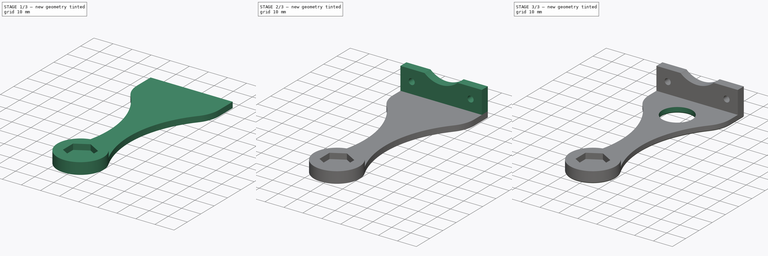
[diagram: build sequence overview — one tinted view per stage of 3, left to right]
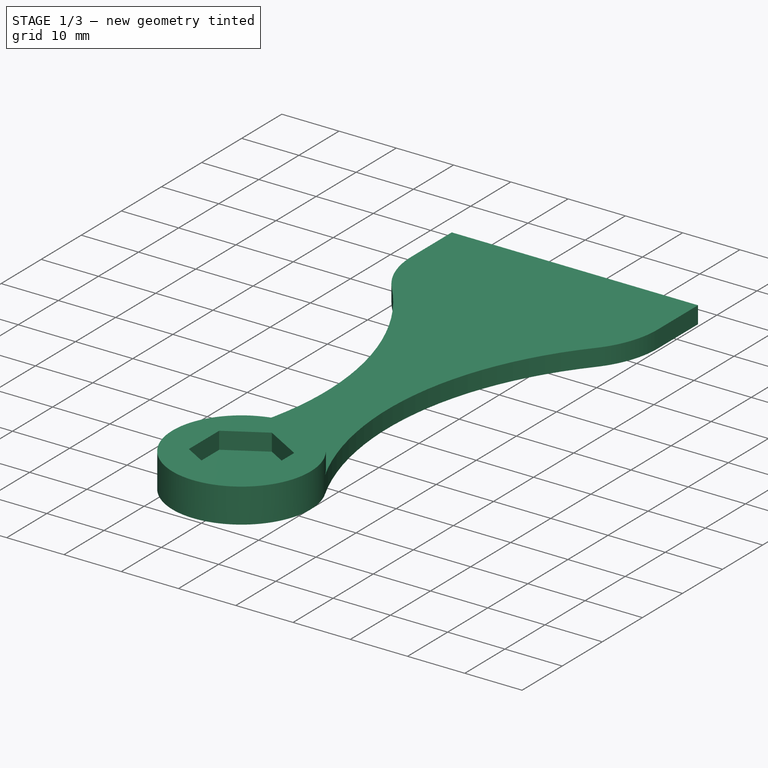
[diagram: stage 1 of 3 — iso view after this stage's code; geometry added in this stage tinted green]
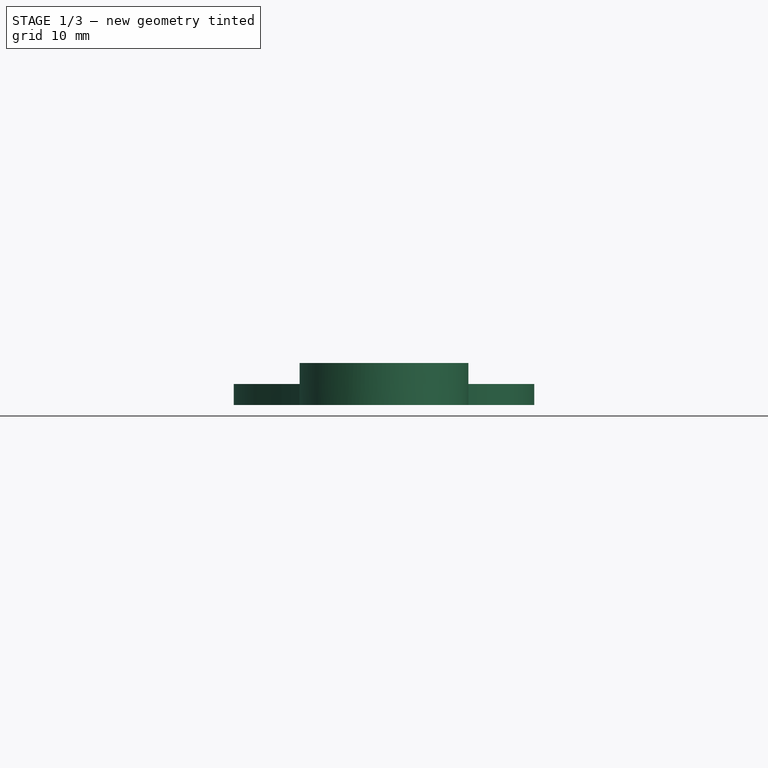
[diagram: stage 1 of 3 — front view after this stage's code; geometry added in this stage tinted green]
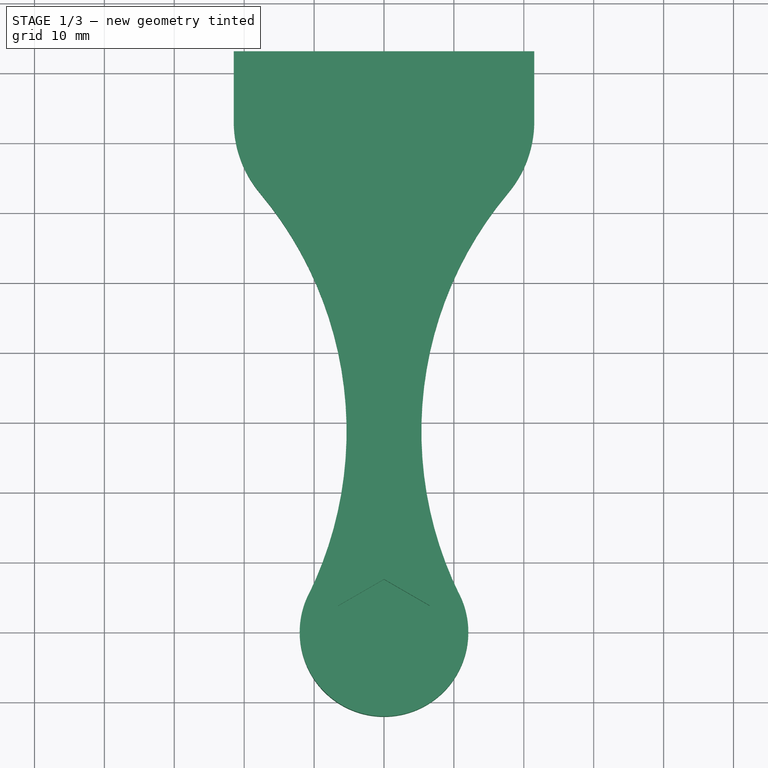
[diagram: stage 1 of 3 — top view after this stage's code; geometry added in this stage tinted green]
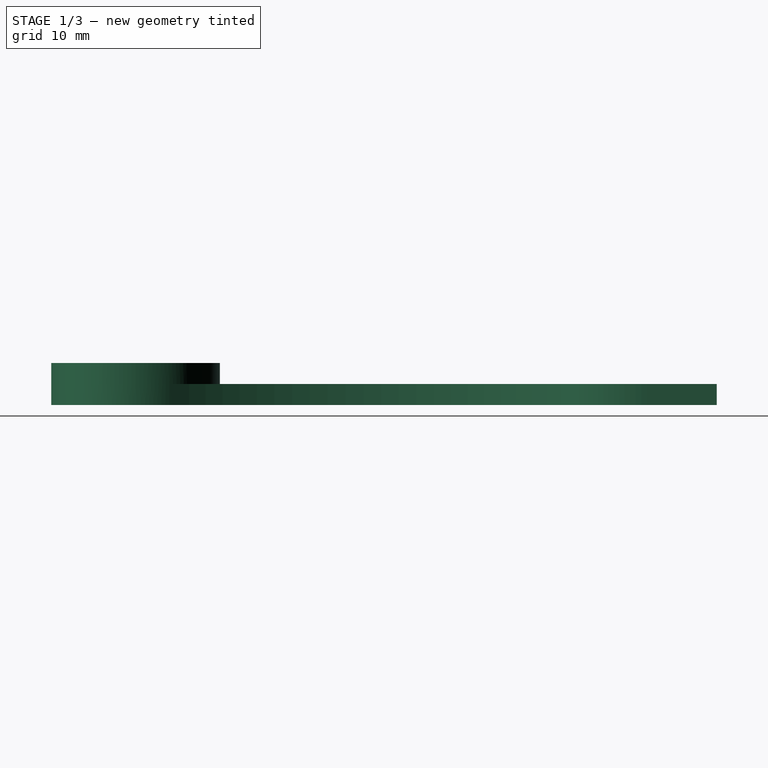
[diagram: stage 1 of 3 — right view after this stage's code; geometry added in this stage tinted green]
FCSTD DOCUMENT  (FreeCAD 0.16RUnknown)
Label: motot-mount.001
License: All rights reserved
LicenseURL: http://en.wikipedia.org/wiki/All_rights_reserved
objects: Sketcher::SketchObject×4, Part::Extrusion×2, PartDesign::Pad×1, Part::MultiFuse×1, PartDesign::Pocket×1, Part::Fillet×1
note: 12 computed .brp shape members not serialized (recipe doc carries the construction recipe); baked Part::Feature solids carry a one-line shape summary decoded from their .brp

FEATURE [Sketcher::SketchObject] Sketch
  sketch-geometry (22):
    g0: LineSegment [constr] StartX=0 StartY=7.56329 StartZ=0 EndX=-6.55 EndY=3.78164 EndZ=0
    g1: LineSegment [constr] StartX=-6.55 StartY=3.78164 StartZ=0 EndX=-6.55 EndY=-3.78164 EndZ=0
    g2: LineSegment [constr] StartX=-6.55 StartY=-3.78164 StartZ=0 EndX=0 EndY=-7.56329 EndZ=0
    g3: LineSegment [constr] StartX=0 StartY=-7.56329 StartZ=0 EndX=6.55 EndY=-3.78164 EndZ=0
    g4: LineSegment [constr] StartX=6.55 StartY=-3.78164 StartZ=0 EndX=6.55 EndY=3.78164 EndZ=0
    g5: LineSegment [constr] StartX=6.55 StartY=3.78164 StartZ=0 EndX=0 EndY=7.56329 EndZ=0
    g6: Circle [constr] CenterX=0 CenterY=0 CenterZ=0 NormalX=0 NormalY=0 NormalZ=1 Radius=7.56329
    g7: LineSegment StartX=-21.5 StartY=83.1367 StartZ=0 EndX=21.5 EndY=83.1367 EndZ=0
    g8: LineSegment [constr] StartX=0 StartY=7.56329 StartZ=0 EndX=0 EndY=12.0633 EndZ=0
    g9: LineSegment [constr] StartX=0 StartY=83.1367 StartZ=0 EndX=0 EndY=78.6367 EndZ=0
    g10: ArcOfCircle [constr] CenterX=0 CenterY=0 CenterZ=0 NormalX=0 NormalY=0 NormalZ=1 Radius=12.0633 StartAngle=0.458185 EndAngle=2.68341
    g11: ArcOfCircle CenterX=0 CenterY=0 CenterZ=0 NormalX=0 NormalY=0 NormalZ=1 Radius=12.0633 StartAngle=2.68341 EndAngle=6.74137
    g12: LineSegment StartX=-21.5 StartY=83.1367 StartZ=0 EndX=-21.5 EndY=73.1367 EndZ=0
    g13: LineSegment StartX=21.5 StartY=83.1367 StartZ=0 EndX=21.5 EndY=73.1367 EndZ=0
    g14: ArcOfCircle CenterX=-5.5 CenterY=73.1367 CenterZ=0 NormalX=0 NormalY=0 NormalZ=1 Radius=16 StartAngle=3.14159 EndAngle=3.83983
    g15: ArcOfCircle CenterX=5.5 CenterY=73.1452 CenterZ=0 NormalX=0 NormalY=0 NormalZ=1 Radius=16 StartAngle=5.58425 EndAngle=6.28265
    g16: ArcOfCircle CenterX=-58.3525 CenterY=28.7789 CenterZ=0 NormalX=0 NormalY=0 NormalZ=1 Radius=53 StartAngle=5.825 EndAngle=6.98142
    g17: ArcOfCircle CenterX=58.3498 CenterY=28.7842 CenterZ=0 NormalX=0 NormalY=0 NormalZ=1 Radius=53 StartAngle=2.44349 EndAngle=3.59989
    g18: LineSegment [constr] StartX=-21.5 StartY=83.1367 StartZ=0 EndX=0 EndY=78.6367 EndZ=0
    g19: LineSegment [constr] StartX=0 StartY=78.6367 StartZ=0 EndX=21.5 EndY=83.1367 EndZ=0
    g20: LineSegment [constr] StartX=-17.7556 StartY=62.8508 StartZ=0 EndX=17.7485 EndY=62.8508 EndZ=0
    g21: LineSegment [constr] StartX=-10.819 StartY=5.33585 StartZ=0 EndX=10.819 EndY=5.33585 EndZ=0
  constraints (61):
    c: Coincident(g0,g1)
    c: Coincident(g1,g2)
    c: Coincident(g2,g3)
    c: Coincident(g3,g4)
    c: Coincident(g4,g5)
    c: Coincident(g5,g0)
    c: Equal(g0, g1-g5) x5
    c: PointOnObject(g0,g6)
    c: PointOnObject(g1,g6)
    c: PointOnObject(g2,g6)
    c: PointOnObject(g3,g6)
    c: PointOnObject(g4,g6)
    c: PointOnObject(g5,g6)
    c: Vertical(g4)
    c: Coincident(g6,g-1)
    c: DistanceX(g1,g3) = 13.1
    c: Horizontal(g7)
    c: Vertical(g8)
    c: Coincident(g0,g8)
    c: DistanceY(g8,g8) = 4.5
    c: Vertical(g9)
    c: PointOnObject(g9,g7)
    c: PointOnObject(g9,g-2)
    c: Equal(g9,g8)
    c: DistanceY(g2,g9) = 86.2
    c: DistanceX(g7,g7) = 43
    c: Coincident(g6,g10)
    c: Coincident(g6,g11)
    c: Coincident(g10,g11)
    c: Coincident(g10,g11)
    c: PointOnObject(g8,g10)
    c: Vertical(g12)
    c: Vertical(g13)
    c: Equal(g13,g12)
    c: Coincident(g7,g12)
    c: Coincident(g7,g13)
    c: Coincident(g14,g16)
    c: Coincident(g15,g17)
    c: Coincident(g10,g16)
    c: Coincident(g10,g17)
    c: Coincident(g12,g14)
    c: Coincident(g13,g15)
    c: Coincident(g18,g19)
    c: Coincident(g7,g19)
    c: Coincident(g9,g18)
    c: Coincident(g7,g18)
    c: Equal(g18,g19)
    c: DistanceY(g13,g13) = 10
    c: Equal(g14,g15)
    c: Equal(g16,g17)
    c: Horizontal(g20)
    c: Coincident(g15,g20)
    c: Coincident(g14,g20)
    c: Horizontal(g21)
    c: Coincident(g10,g21)
    c: Coincident(g10,g21)
    c: Radius(g14) = 16
    c: Radius(g16) = 53
    c: Tangent(g14,g12)
    c: Tangent(g14,g16)
    c: Tangent(g16,g11)
FEATURE [Part::Extrusion] Extrude
  Base = -> Sketch
  Dir = (0,0,3)
  Solid = true
FEATURE [Sketcher::SketchObject] Sketch001
  ExternalGeometry = -> [Extrude]
  Placement = pos=(0,0,3) rot=(0,0,1;0rad)
  Support = -> Extrude [Face10]
  sketch-geometry (8):
    g0: Circle CenterX=0 CenterY=0 CenterZ=0 NormalX=0 NormalY=0 NormalZ=1 Radius=12.0633
    g1: LineSegment StartX=0 StartY=7.56329 StartZ=0 EndX=-6.55 EndY=3.78164 EndZ=0
    g2: LineSegment StartX=-6.55 StartY=3.78164 StartZ=0 EndX=-6.55 EndY=-3.78164 EndZ=0
    g3: LineSegment StartX=-6.55 StartY=-3.78164 StartZ=0 EndX=0 EndY=-7.56329 EndZ=0
    g4: LineSegment StartX=0 StartY=-7.56329 StartZ=0 EndX=6.55 EndY=-3.78164 EndZ=0
    g5: LineSegment StartX=6.55 StartY=-3.78164 StartZ=0 EndX=6.55 EndY=3.78164 EndZ=0
    g6: LineSegment StartX=6.55 StartY=3.78164 StartZ=0 EndX=0 EndY=7.56329 EndZ=0
    g7: Circle [constr] CenterX=0 CenterY=0 CenterZ=0 NormalX=0 NormalY=0 NormalZ=1 Radius=7.56329
  constraints (18):
    c: Coincident(g0,g-3)
    c: Equal(g-3,g0)
    c: Coincident(g1,g2)
    c: Coincident(g2,g3)
    c: Coincident(g3,g4)
    c: Coincident(g4,g5)
    c: Coincident(g5,g6)
    c: Coincident(g6,g1)
    c: Equal(g1, g2-g6) x5
    c: PointOnObject(g1,g7)
    c: PointOnObject(g2,g7)
    c: PointOnObject(g3,g7)
    c: PointOnObject(g4,g7)
    c: PointOnObject(g5,g7)
    c: PointOnObject(g6,g7)
    c: Vertical(g5)
    c: Coincident(g0,g7)
    c: DistanceX(g2,g4) = 13.1
FEATURE [PartDesign::Pad] Pad
  Length = 3
  Length2 = 100
  Sketch = -> Sketch001
  Type = 0
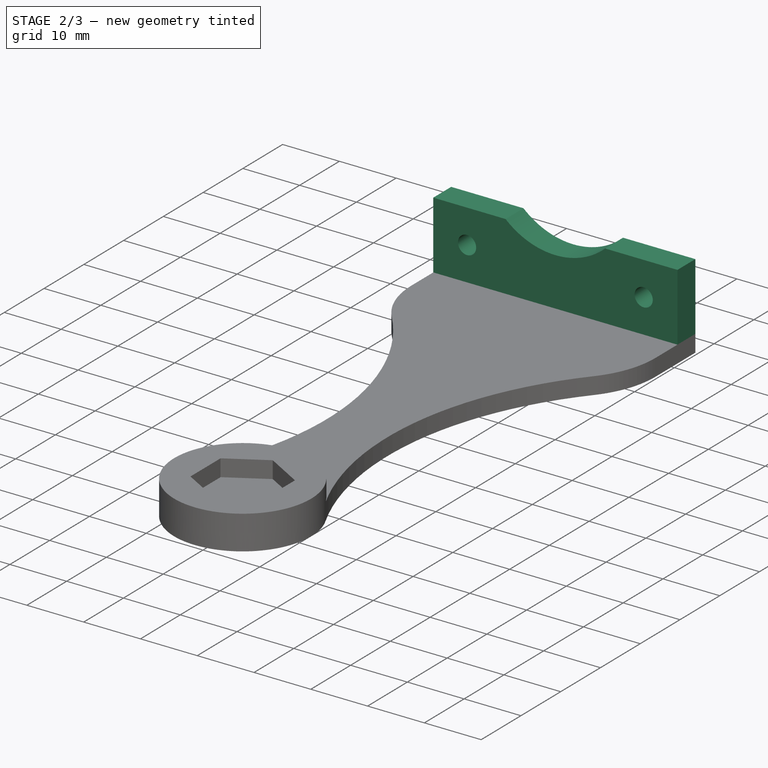
[diagram: stage 2 of 3 — iso view after this stage's code; geometry added in this stage tinted green]
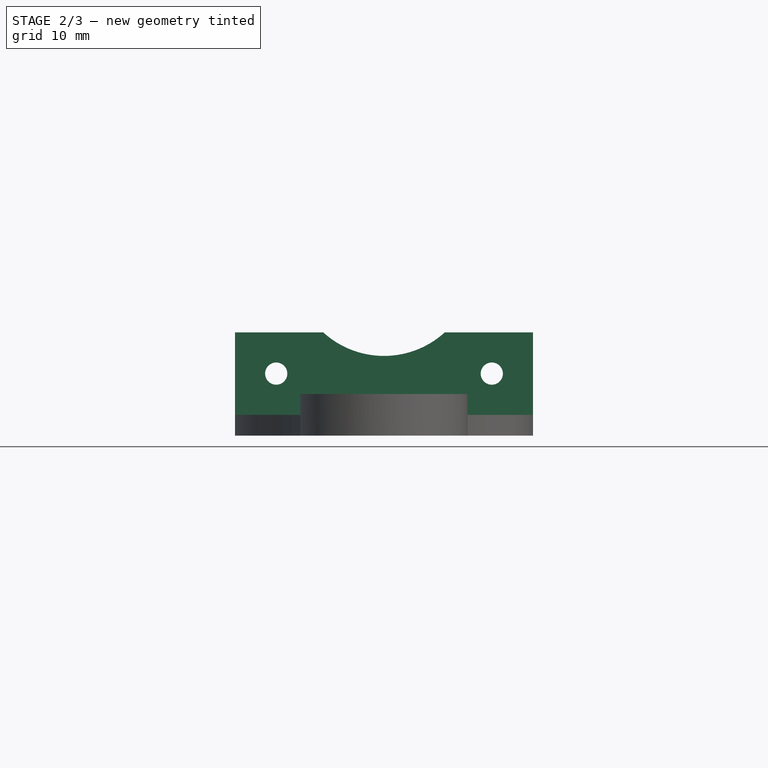
[diagram: stage 2 of 3 — front view after this stage's code; geometry added in this stage tinted green]
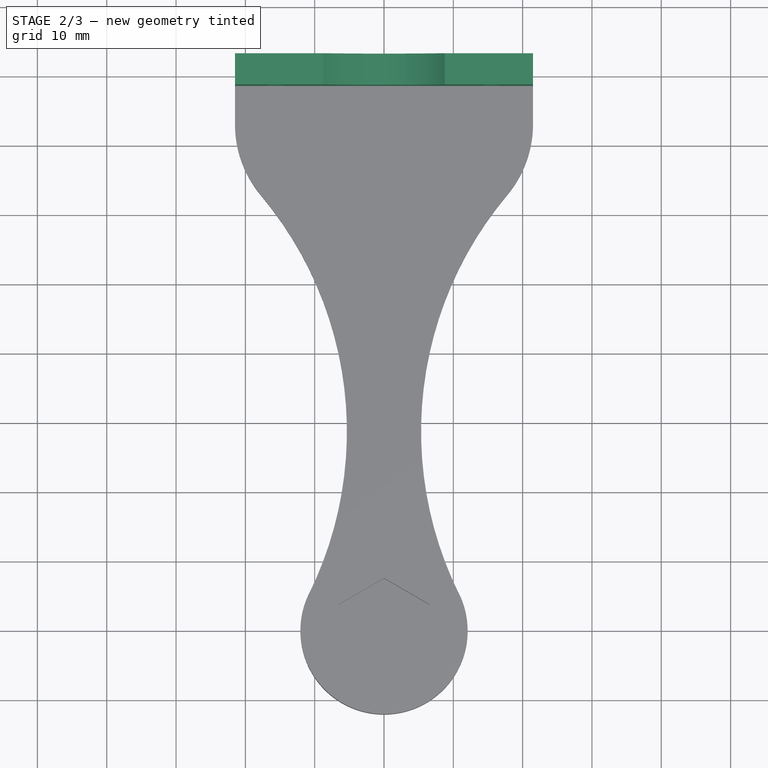
[diagram: stage 2 of 3 — top view after this stage's code; geometry added in this stage tinted green]
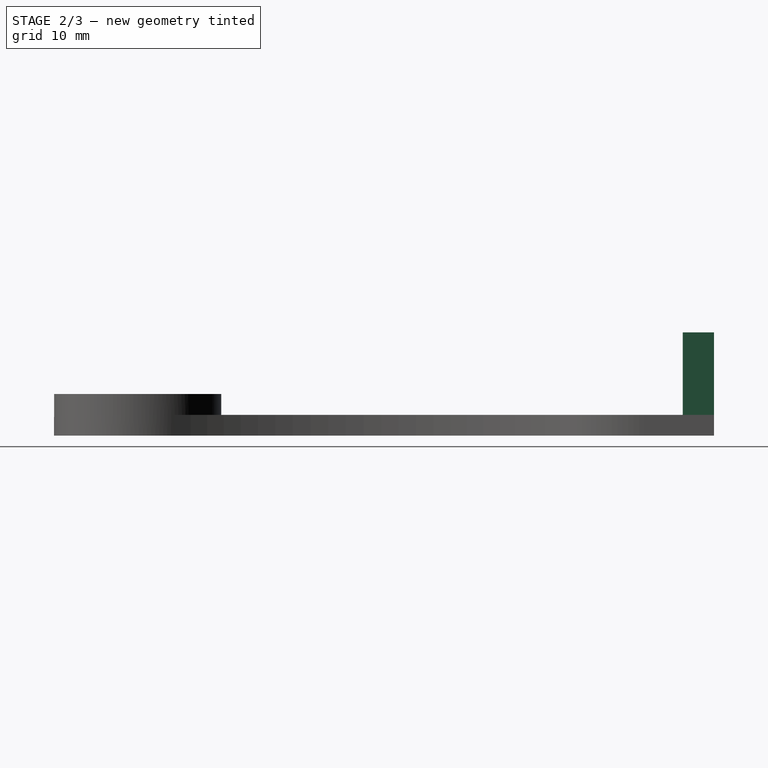
[diagram: stage 2 of 3 — right view after this stage's code; geometry added in this stage tinted green]
FEATURE [Sketcher::SketchObject] Sketch002
  ExternalGeometry = -> [Pad]
  Placement = pos=(0,83.1367,0) rot=(0,0.707107,0.707107;3.14159rad)
  Support = -> Pad [Face2]
  sketch-geometry (17):
    g0: LineSegment StartX=-8.76584 StartY=14.9 StartZ=0 EndX=-21.5 EndY=14.9 EndZ=0
    g1: LineSegment StartX=-21.5 StartY=14.9 StartZ=0 EndX=-21.5 EndY=3 EndZ=0
    g2: LineSegment StartX=-21.5 StartY=3 StartZ=0 EndX=21.5 EndY=3 EndZ=0
    g3: LineSegment StartX=21.5 StartY=3 StartZ=0 EndX=21.5 EndY=14.9 EndZ=0
    g4: LineSegment StartX=21.5 StartY=14.9 StartZ=0 EndX=8.76584 EndY=14.9 EndZ=0
    g5: ArcOfCircle CenterX=0 CenterY=24.5 CenterZ=0 NormalX=0 NormalY=0 NormalZ=1 Radius=13 StartAngle=3.97238 EndAngle=5.4524
    g6: LineSegment [constr] StartX=-21.5 StartY=46 StartZ=0 EndX=21.5 EndY=46 EndZ=0
    g7: LineSegment [constr] StartX=21.5 StartY=46 StartZ=0 EndX=21.5 EndY=14.9 EndZ=0
    g8: LineSegment [constr] StartX=-21.5 StartY=46 StartZ=0 EndX=-21.5 EndY=3 EndZ=0
    g9: LineSegment [constr] StartX=-21.5 StartY=3 StartZ=0 EndX=0 EndY=24.5 EndZ=0
    g10: LineSegment [constr] StartX=0 StartY=24.5 StartZ=0 EndX=21.5 EndY=46 EndZ=0
    g11: LineSegment [constr] StartX=0 StartY=24.5 StartZ=0 EndX=21.5 EndY=3 EndZ=0
    g12: Circle CenterX=-15.55 CenterY=8.95 CenterZ=0 NormalX=0 NormalY=0 NormalZ=1 Radius=1.6
    g13: Circle CenterX=15.55 CenterY=8.95 CenterZ=0 NormalX=0 NormalY=0 NormalZ=1 Radius=1.6
    g14: LineSegment [constr] StartX=-15.55 StartY=8.95 StartZ=0 EndX=15.55 EndY=8.95 EndZ=0
    g15: LineSegment [constr] StartX=-15.55 StartY=3 StartZ=0 EndX=-15.55 EndY=8.95 EndZ=0
    g16: LineSegment [constr] StartX=-15.55 StartY=8.95 StartZ=0 EndX=-15.55 EndY=14.9 EndZ=0
  constraints (47):
    c: Horizontal(g0)
    c: Coincident(g0,g1)
    c: Vertical(g1)
    c: Coincident(g1,g2)
    c: Horizontal(g2)
    c: Coincident(g2,g3)
    c: Vertical(g3)
    c: Coincident(g3,g4)
    c: Horizontal(g4)
    c: Coincident(g4,g5)
    c: Coincident(g0,g5)
    c: Equal(g1,g3)
    c: Equal(g0,g4)
    c: Coincident(g1,g-3)
    c: Coincident(g2,g-3)
    c: Horizontal(g6)
    c: Coincident(g6,g7)
    c: Vertical(g7)
    c: Coincident(g3,g7)
    c: Vertical(g8)
    c: Coincident(g1,g8)
    c: Coincident(g6,g8)
    c: Equal(g8,g-3)
    c: Coincident(g9,g10)
    c: Coincident(g6,g10)
    c: Coincident(g1,g9)
    c: Equal(g9,g10)
    c: Parallel(g9,g10)
    c: Coincident(g5,g9)
    c: Radius(g5) = 13
    c: Coincident(g2,g11)
    c: Coincident(g5,g11)
    c: PointOnObject(g13,g11)
    c: PointOnObject(g12,g9)
    c: Equal(g12,g13)
    c: Horizontal(g14)
    c: Coincident(g13,g14)
    c: Coincident(g12,g14)
    c: DistanceX(g14,g14) = 31.1
    c: Radius(g12) = 1.6
    c: Coincident(g15,g16)
    c: Coincident(g12,g15)
    c: Vertical(g15)
    c: Vertical(g16)
    c: PointOnObject(g16,g0)
    c: PointOnObject(g15,g-3)
    c: Equal(g15,g16)
FEATURE [Part::Extrusion] Extrude001
  Base = -> Sketch002
  Dir = (0,-4.5,0)
  Solid = true
FEATURE [Part::MultiFuse] Fusion
  Shapes = -> [Pad,Extrude001]
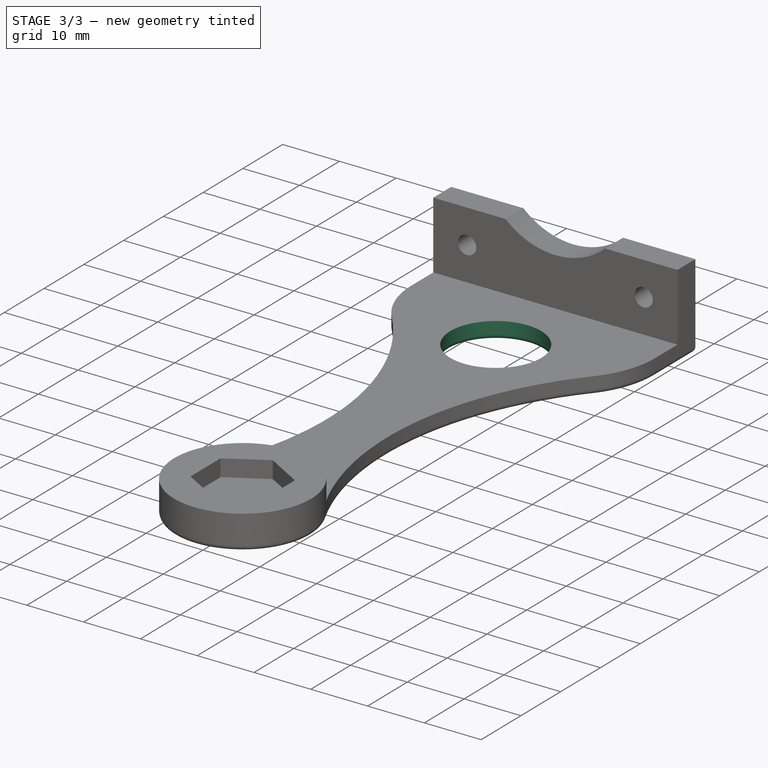
[diagram: stage 3 of 3 — iso view after this stage's code; geometry added in this stage tinted green]
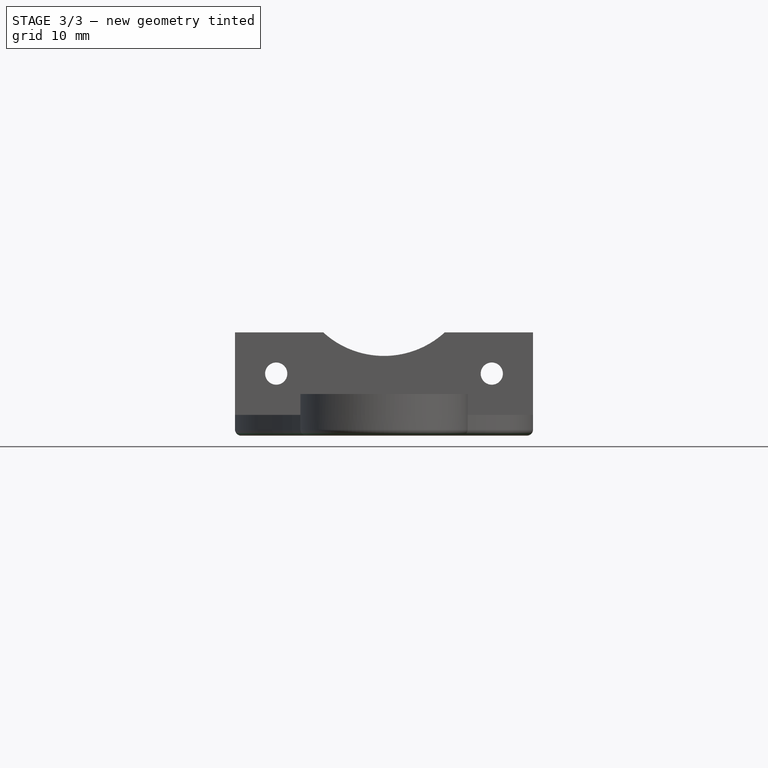
[diagram: stage 3 of 3 — front view after this stage's code; geometry added in this stage tinted green]
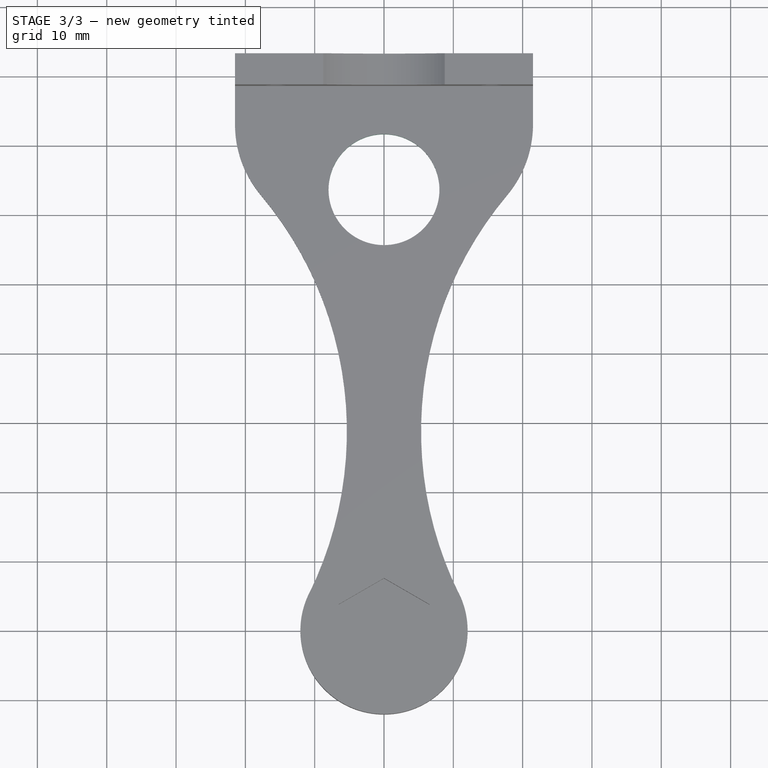
[diagram: stage 3 of 3 — top view after this stage's code; geometry added in this stage tinted green]
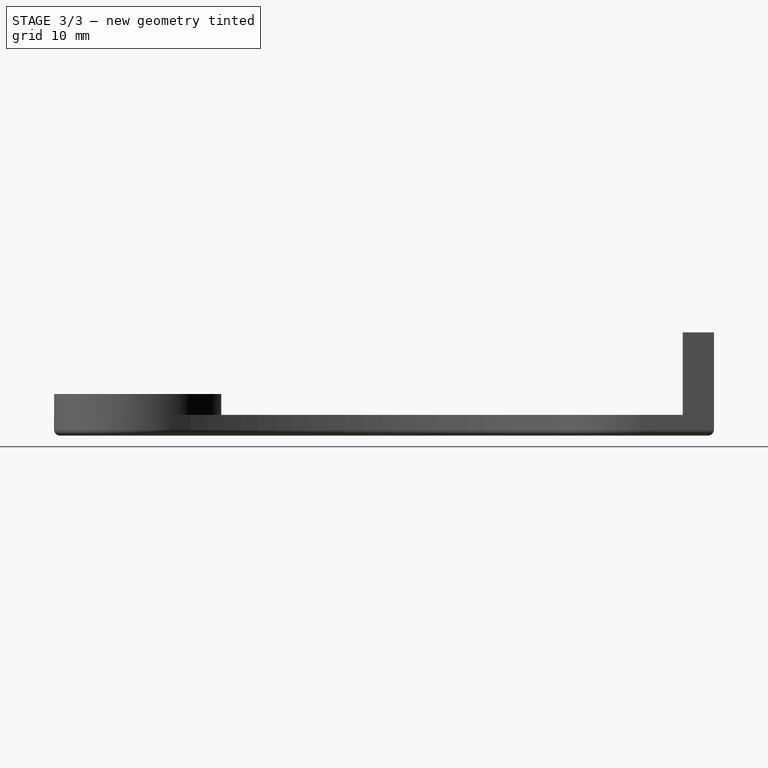
[diagram: stage 3 of 3 — right view after this stage's code; geometry added in this stage tinted green]
FEATURE [Sketcher::SketchObject] Sketch003
  ExternalGeometry = -> [Fusion]
  Placement = pos=(0,0,3) rot=(0,0,1;0rad)
  Support = -> Fusion [Face11]
  sketch-geometry (2):
    g0: Circle [constr] CenterX=-0.00293399 CenterY=63.6574 CenterZ=0 NormalX=0 NormalY=0 NormalZ=1 Radius=14.9793
    g1: Circle CenterX=-0.00293399 CenterY=63.6574 CenterZ=0 NormalX=0 NormalY=0 NormalZ=1 Radius=8
  constraints (5):
    c: Tangent(g0,g-4)
    c: Tangent(g0,g-5)
    c: Tangent(g0,g-3)
    c: Coincident(g0,g1)
    c: Radius(g1) = 8
FEATURE [PartDesign::Pocket] Pocket
  Length = 5
  Sketch = -> Sketch003
  Type = 1
FEATURE [Part::Fillet] Fillet
  Base = -> Pocket
  Edges = 9 edges r=0.9: [Edge1,Edge2,Edge3,Edge4,Edge5,Edge6,Edge7,Edge8,Edge9]
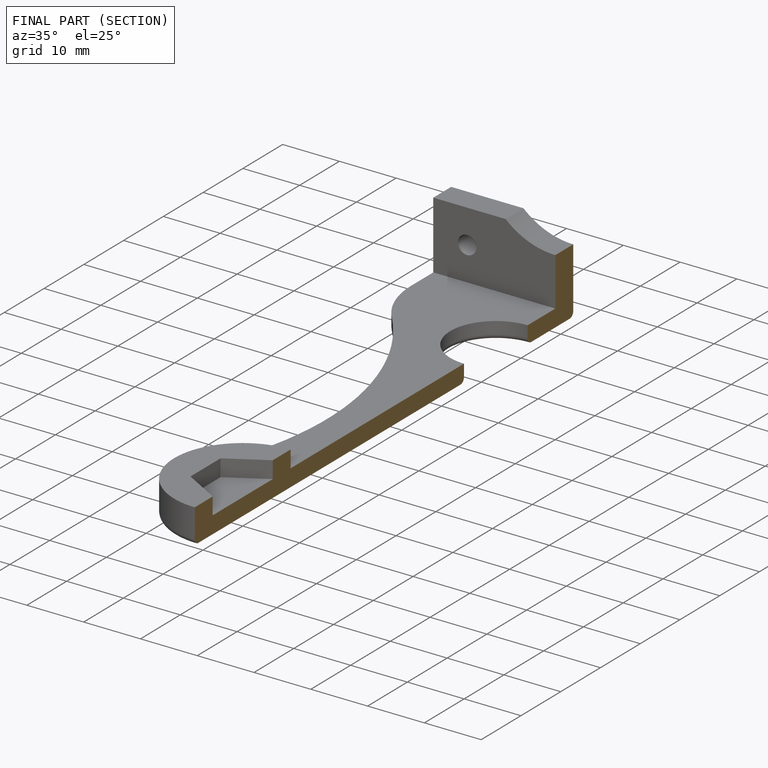
[diagram: finished part — half-section view (interior)]
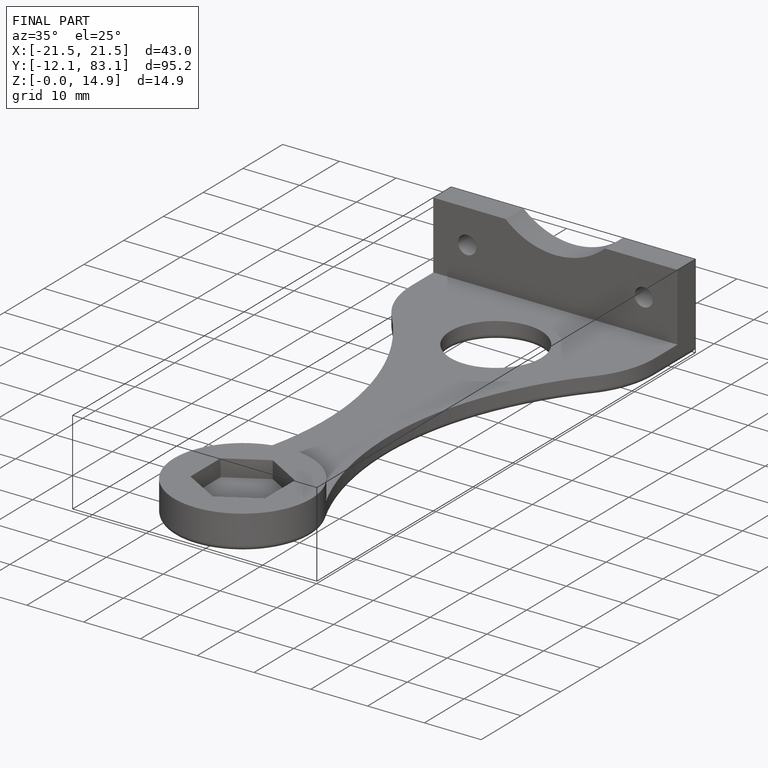
[diagram: finished part — iso view with bounding-box wireframe]
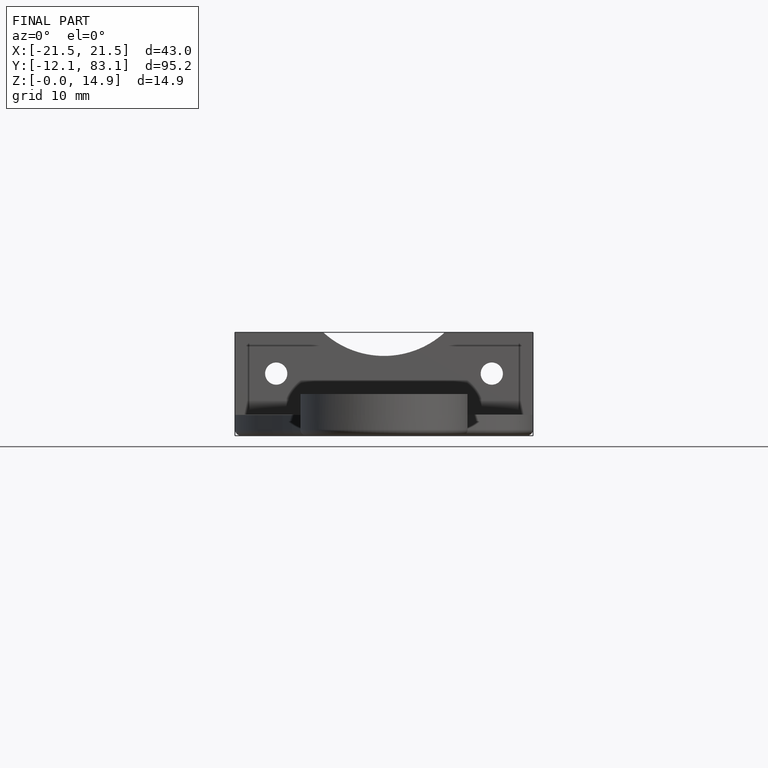
[diagram: finished part — front view with bounding-box wireframe]
